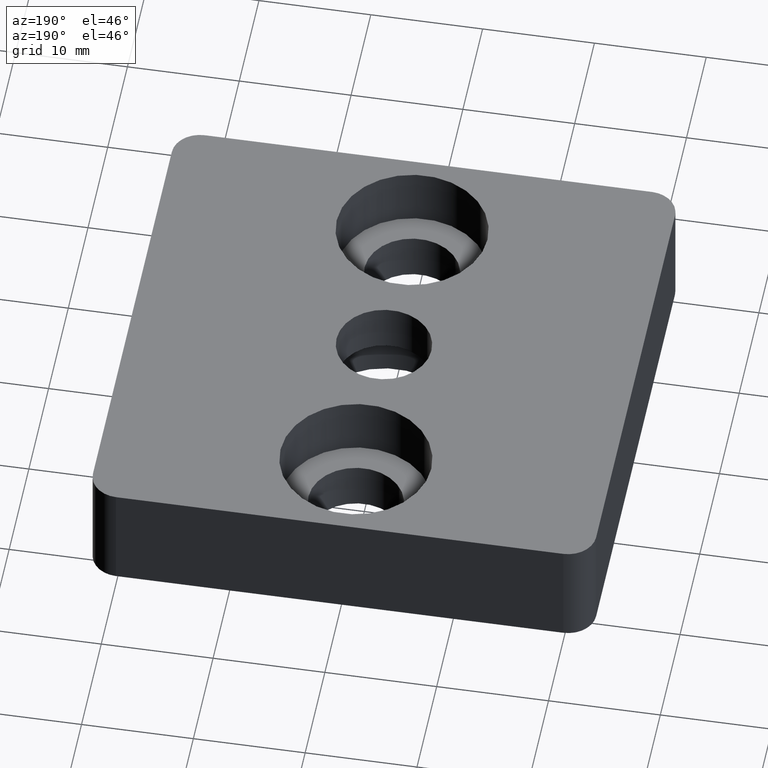
[diagram: clean part render]
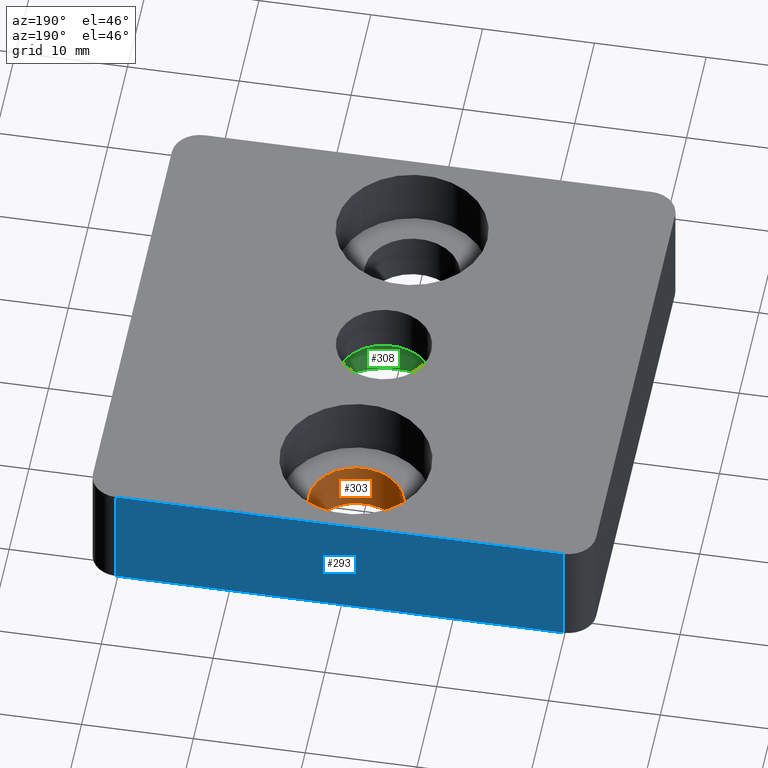
[diagram: same view with three faces highlighted in distinct colors, each labeled with its STEP entity id]
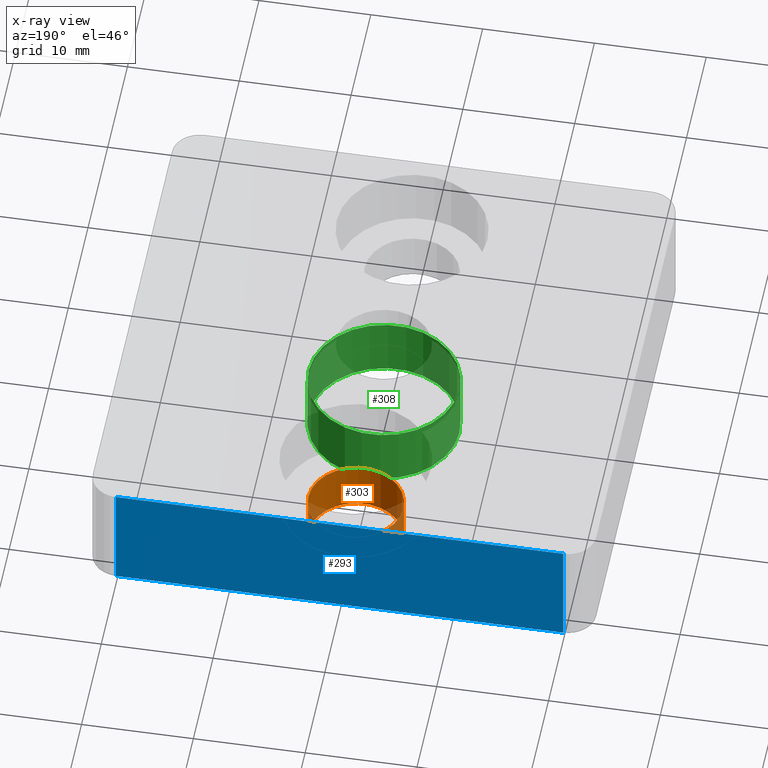
[diagram: x-ray of the same camera — body ghosted, the three highlighted faces saturated]
A machine part, auxiliary view with three faces highlighted in distinct colors.
The next image is the same camera in x-ray (body ghosted, the three faces saturated) — at least one of them is partly hidden behind the body in this view.
Their STEP definitions:

[orange] entity #303 — the highlighted cylindrical surface (bore or boss wall) has radius 4.25 mm, axis along (0, 0, 1).
#24=FACE_BOUND('',#81,.T.);
#52=FACE_OUTER_BOUND('',#80,.T.);
#80=EDGE_LOOP('',(#268));
#81=EDGE_LOOP('',(#269));
#104=CIRCLE('',#333,4.24999999998317);
#108=CIRCLE('',#341,4.24999999998317);
#164=VERTEX_POINT('',#505);
#168=VERTEX_POINT('',#517);
#200=EDGE_CURVE('',#164,#164,#104,.T.);
#204=EDGE_CURVE('',#168,#168,#108,.T.);
#268=ORIENTED_EDGE('',*,*,#200,.F.);
#269=ORIENTED_EDGE('',*,*,#204,.T.);
#286=CYLINDRICAL_SURFACE('',#340,4.24999999998317);
#303=ADVANCED_FACE('',(#52,#24),#286,.F.);
#333=AXIS2_PLACEMENT_3D('',#506,#412,#413);
#340=AXIS2_PLACEMENT_3D('',#516,#426,#427);
#341=AXIS2_PLACEMENT_3D('',#518,#428,#429);
#412=DIRECTION('center_axis',(0.,0.,1.));
#413=DIRECTION('ref_axis',(1.,0.,0.));
#426=DIRECTION('center_axis',(0.,0.,1.));
#427=DIRECTION('ref_axis',(1.,0.,0.));
#428=DIRECTION('center_axis',(0.,0.,1.));
#429=DIRECTION('ref_axis',(1.,0.,0.));
#505=CARTESIAN_POINT('',(-4.24999999998317,14.2499999999432,-10.));
#506=CARTESIAN_POINT('Origin',(0.,14.2499999999432,-10.));
#516=CARTESIAN_POINT('Origin',(0.,14.2499999999432,-11.000016784668));
#517=CARTESIAN_POINT('',(-4.24999999998317,14.2499999999432,-5.5));
#518=CARTESIAN_POINT('Origin',(0.,14.2499999999432,-5.5));

[blue] entity #293 — the highlighted planar face has unit normal (0, -1, 0).
#31=PLANE('',#318);
#42=FACE_OUTER_BOUND('',#61,.T.);
#61=EDGE_LOOP('',(#220,#221,#222,#223));
#117=LINE('',#466,#133);
#118=LINE('',#470,#134);
#119=LINE('',#472,#135);
#120=LINE('',#473,#136);
#133=VECTOR('',#369,10.);
#134=VECTOR('',#374,39.9999999998399);
#135=VECTOR('',#375,10.);
#136=VECTOR('',#376,39.9999999998399);
#150=VERTEX_POINT('',#463);
#151=VERTEX_POINT('',#465);
#152=VERTEX_POINT('',#469);
#153=VERTEX_POINT('',#471);
#180=EDGE_CURVE('',#151,#150,#117,.T.);
#182=EDGE_CURVE('',#150,#152,#118,.T.);
#183=EDGE_CURVE('',#153,#152,#119,.T.);
#184=EDGE_CURVE('',#151,#153,#120,.T.);
#220=ORIENTED_EDGE('',*,*,#180,.T.);
#221=ORIENTED_EDGE('',*,*,#182,.T.);
#222=ORIENTED_EDGE('',*,*,#183,.F.);
#223=ORIENTED_EDGE('',*,*,#184,.F.);
#293=ADVANCED_FACE('',(#42),#31,.F.);
#318=AXIS2_PLACEMENT_3D('',#468,#372,#373);
#369=DIRECTION('',(0.,0.,-1.));
#372=DIRECTION('center_axis',(0.,-1.,0.));
#373=DIRECTION('ref_axis',(0.,0.,-1.));
#374=DIRECTION('',(-1.,0.,0.));
#375=DIRECTION('',(0.,0.,-1.));
#376=DIRECTION('',(-1.,0.,0.));
#463=CARTESIAN_POINT('',(19.99999999992,22.49999999991,-10.));
#465=CARTESIAN_POINT('',(19.99999999992,22.49999999991,0.));
#466=CARTESIAN_POINT('',(19.99999999992,22.49999999991,0.));
#468=CARTESIAN_POINT('Origin',(19.99999999992,22.49999999991,0.));
#469=CARTESIAN_POINT('',(-19.99999999992,22.49999999991,-10.));
#470=CARTESIAN_POINT('',(19.99999999992,22.49999999991,-10.));
#471=CARTESIAN_POINT('',(-19.99999999992,22.49999999991,0.));
#472=CARTESIAN_POINT('',(-19.99999999992,22.49999999991,0.));
#473=CARTESIAN_POINT('',(19.99999999992,22.49999999991,0.));

[green] entity #308 — the highlighted cylindrical surface (bore or boss wall) has radius 6.75 mm, axis along (0, 0, -1).
#29=FACE_BOUND('',#91,.T.);
#57=FACE_OUTER_BOUND('',#90,.T.);
#90=EDGE_LOOP('',(#278));
#91=EDGE_LOOP('',(#279));
#105=CIRCLE('',#334,6.74999999997317);
#111=CIRCLE('',#348,6.74999999997317);
#165=VERTEX_POINT('',#507);
#171=VERTEX_POINT('',#527);
#201=EDGE_CURVE('',#165,#165,#105,.T.);
#207=EDGE_CURVE('',#171,#171,#111,.T.);
#278=ORIENTED_EDGE('',*,*,#201,.T.);
#279=ORIENTED_EDGE('',*,*,#207,.F.);
#289=CYLINDRICAL_SURFACE('',#349,6.74999999997317);
#308=ADVANCED_FACE('',(#57,#29),#289,.F.);
#334=AXIS2_PLACEMENT_3D('',#508,#414,#415);
#348=AXIS2_PLACEMENT_3D('',#528,#442,#443);
#349=AXIS2_PLACEMENT_3D('',#529,#444,#445);
#414=DIRECTION('center_axis',(0.,0.,-1.));
#415=DIRECTION('ref_axis',(1.,0.,0.));
#442=DIRECTION('center_axis',(0.,0.,-1.));
#443=DIRECTION('ref_axis',(1.,0.,0.));
#444=DIRECTION('center_axis',(0.,0.,-1.));
#445=DIRECTION('ref_axis',(1.,0.,0.));
#507=CARTESIAN_POINT('',(-6.74999999997317,0.,-10.));
#508=CARTESIAN_POINT('Origin',(0.,0.,-10.));
#527=CARTESIAN_POINT('',(-6.74999999997317,0.,-4.5));
#528=CARTESIAN_POINT('Origin',(0.,0.,-4.5));
#529=CARTESIAN_POINT('Origin',(0.,0.,-4.5));